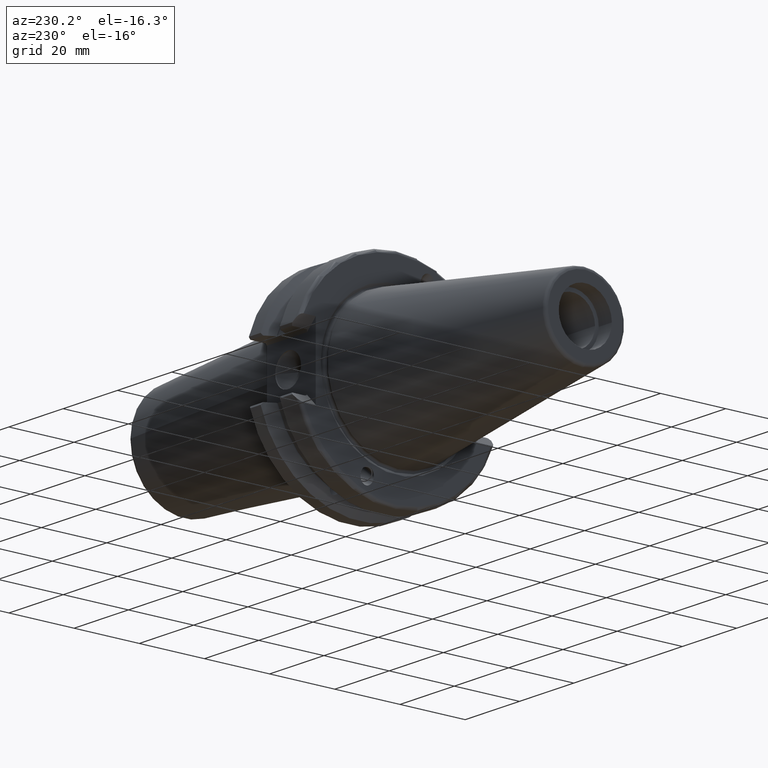
[diagram: clean part render]
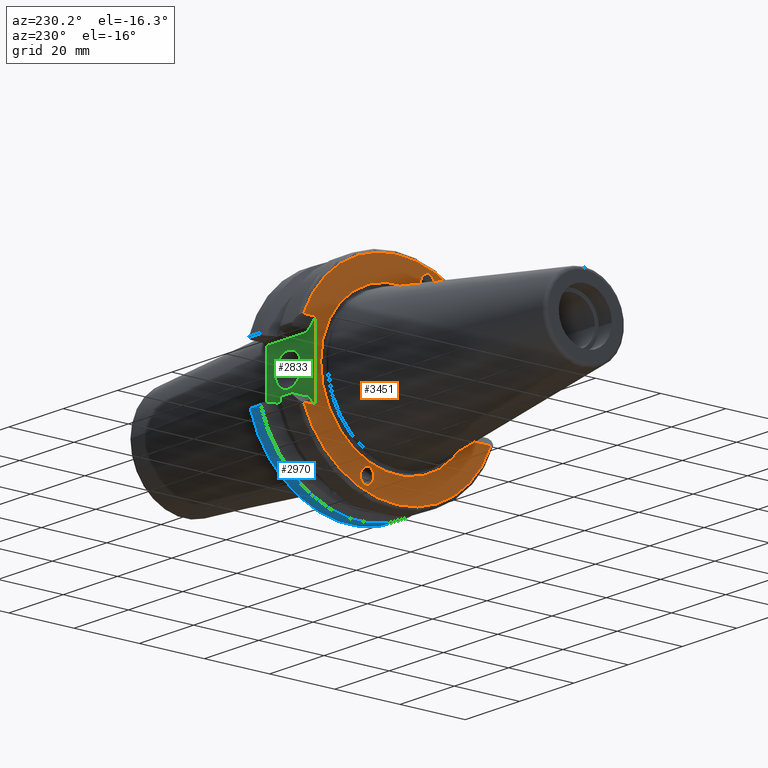
[diagram: same view with three faces highlighted in distinct colors, each labeled with its STEP entity id]
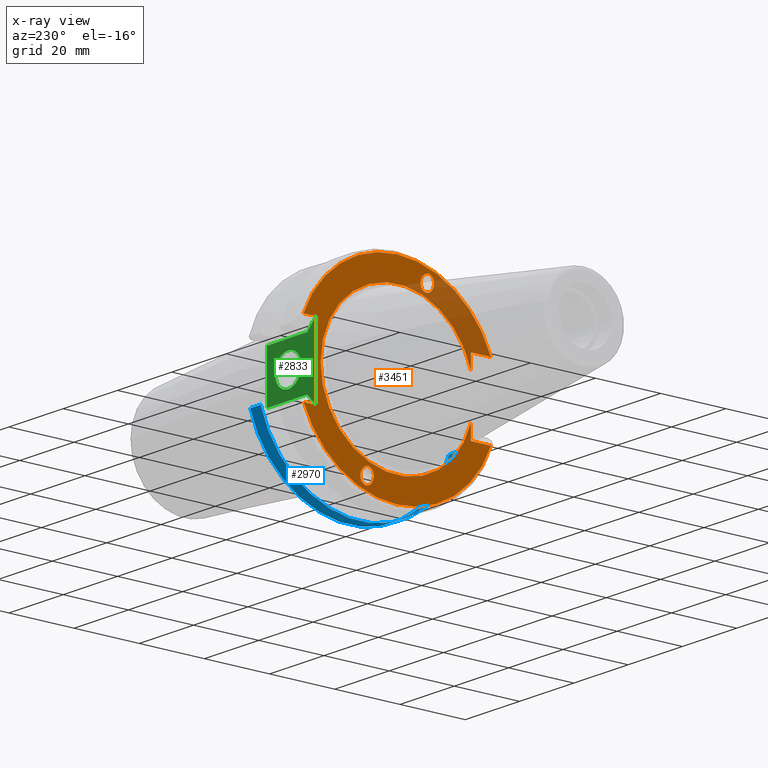
[diagram: x-ray of the same camera — body ghosted, the three highlighted faces saturated]
A machine part, auxiliary view with three faces highlighted in distinct colors.
The next image is the same camera in x-ray (body ghosted, the three faces saturated) — at least one of them is partly hidden behind the body in this view.
Their STEP definitions:

[orange] entity #3451 — the highlighted planar face has unit normal (1, 0, 0).
#514=DIRECTION('',(0.E0,0.E0,-1.E0));
#515=VECTOR('',#514,2.178E1);
#516=CARTESIAN_POINT('',(1.E0,2.5E1,1.089E1));
#517=LINE('',#516,#515);
#1136=DIRECTION('',(0.E0,1.E0,0.E0));
#1137=VECTOR('',#1136,3.757093038066E0);
#1138=CARTESIAN_POINT('',(1.E0,2.5E1,-1.089E1));
#1139=LINE('',#1138,#1137);
#1140=DIRECTION('',(0.E0,-1.E0,0.E0));
#1141=VECTOR('',#1140,3.757093038066E0);
#1142=CARTESIAN_POINT('',(1.E0,2.875709303807E1,1.089E1));
#1143=LINE('',#1142,#1141);
#1144=DIRECTION('',(0.E0,-1.E0,0.E0));
#1145=VECTOR('',#1144,6.157093038066E0);
#1146=CARTESIAN_POINT('',(1.E0,-2.26E1,1.089E1));
#1147=LINE('',#1146,#1145);
#1148=DIRECTION('',(0.E0,1.E0,0.E0));
#1149=VECTOR('',#1148,6.157093038066E0);
#1150=CARTESIAN_POINT('',(1.E0,-2.875709303807E1,-1.089E1));
#1151=LINE('',#1150,#1149);
#1152=CARTESIAN_POINT('',(1.E0,9.497817545982E0,-2.776580810367E1));
#1153=CARTESIAN_POINT('',(1.E0,9.738190502451E0,-2.776580810367E1));
#1154=CARTESIAN_POINT('',(1.E0,1.024617601114E1,-2.766308128203E1));
#1155=CARTESIAN_POINT('',(1.E0,1.091176099893E1,-2.711678591569E1));
#1156=CARTESIAN_POINT('',(1.E0,1.128444525524E1,-2.625731684292E1));
#1157=CARTESIAN_POINT('',(1.E0,1.131773586616E1,-2.537170076122E1));
#1158=CARTESIAN_POINT('',(1.E0,1.108966752127E1,-2.448608467952E1));
#1159=CARTESIAN_POINT('',(1.E0,1.052795616634E1,-2.362661560675E1));
#1160=CARTESIAN_POINT('',(1.E0,9.742221854564E0,-2.308032024041E1));
#1161=CARTESIAN_POINT('',(1.E0,9.211643150074E0,-2.297759341877E1));
#1162=CARTESIAN_POINT('',(1.E0,8.971270193604E0,-2.297759341877E1));
#1164=CARTESIAN_POINT('',(1.E0,8.971270193604E0,-2.297759341877E1));
#1165=CARTESIAN_POINT('',(1.E0,8.730897237135E0,-2.297759341877E1));
#1166=CARTESIAN_POINT('',(1.E0,8.222911728444E0,-2.308032024041E1));
#1167=CARTESIAN_POINT('',(1.E0,7.557326740655E0,-2.362661560675E1));
#1168=CARTESIAN_POINT('',(1.E0,7.184642484349E0,-2.448608467952E1));
#1169=CARTESIAN_POINT('',(1.E0,7.151351873422E0,-2.537170076122E1));
#1170=CARTESIAN_POINT('',(1.E0,7.379420218318E0,-2.625731684292E1));
#1171=CARTESIAN_POINT('',(1.E0,7.941131573241E0,-2.711678591569E1));
#1172=CARTESIAN_POINT('',(1.E0,8.726865885022E0,-2.766308128203E1));
#1173=CARTESIAN_POINT('',(1.E0,9.257444589512E0,-2.776580810367E1));
#1174=CARTESIAN_POINT('',(1.E0,9.497817545982E0,-2.776580810367E1));
#1176=CARTESIAN_POINT('',(1.E0,-8.971270193604E0,2.297759341877E1));
#1177=CARTESIAN_POINT('',(1.E0,-8.730897237135E0,2.297759341877E1));
#1178=CARTESIAN_POINT('',(1.E0,-8.222911728444E0,2.308032024041E1));
#1179=CARTESIAN_POINT('',(1.E0,-7.557326740655E0,2.362661560675E1));
#1180=CARTESIAN_POINT('',(1.E0,-7.184642484349E0,2.448608467952E1));
#1181=CARTESIAN_POINT('',(1.E0,-7.151351873422E0,2.537170076122E1));
#1182=CARTESIAN_POINT('',(1.E0,-7.379420218318E0,2.625731684292E1));
#1183=CARTESIAN_POINT('',(1.E0,-7.941131573241E0,2.711678591569E1));
#1184=CARTESIAN_POINT('',(1.E0,-8.726865885022E0,2.766308128203E1));
#1185=CARTESIAN_POINT('',(1.E0,-9.257444589512E0,2.776580810367E1));
#1186=CARTESIAN_POINT('',(1.E0,-9.497817545982E0,2.776580810367E1));
#1188=CARTESIAN_POINT('',(1.E0,-9.497817545982E0,2.776580810367E1));
#1189=CARTESIAN_POINT('',(1.E0,-9.738190502451E0,2.776580810367E1));
#1190=CARTESIAN_POINT('',(1.E0,-1.024617601114E1,2.766308128203E1));
#1191=CARTESIAN_POINT('',(1.E0,-1.091176099893E1,2.711678591569E1));
#1192=CARTESIAN_POINT('',(1.E0,-1.128444525524E1,2.625731684292E1));
#1193=CARTESIAN_POINT('',(1.E0,-1.131773586616E1,2.537170076122E1));
#1194=CARTESIAN_POINT('',(1.E0,-1.108966752127E1,2.448608467952E1));
#1195=CARTESIAN_POINT('',(1.E0,-1.052795616634E1,2.362661560675E1));
#1196=CARTESIAN_POINT('',(1.E0,-9.742221854564E0,2.308032024041E1));
#1197=CARTESIAN_POINT('',(1.E0,-9.211643150074E0,2.297759341877E1));
#1198=CARTESIAN_POINT('',(1.E0,-8.971270193604E0,2.297759341877E1));
#1205=CARTESIAN_POINT('',(1.E0,0.E0,0.E0));
#1206=DIRECTION('',(-1.E0,0.E0,0.E0));
#1207=DIRECTION('',(0.E0,9.351900174981E-1,-3.541463414634E-1));
#1208=AXIS2_PLACEMENT_3D('',#1205,#1206,#1207);
#1222=CARTESIAN_POINT('',(1.E0,2.875709303807E1,-1.089E1));
#1236=CARTESIAN_POINT('',(1.E0,-2.875709303807E1,-1.089E1));
#1263=DIRECTION('',(0.E0,0.E0,1.E0));
#1264=VECTOR('',#1263,4.448726833925E0);
#1265=CARTESIAN_POINT('',(1.E0,-2.26E1,-1.089E1));
#1266=LINE('',#1265,#1264);
#1267=DIRECTION('',(0.E0,0.E0,1.E0));
#1268=VECTOR('',#1267,4.448726833925E0);
#1269=CARTESIAN_POINT('',(1.E0,-2.26E1,6.441273166075E0));
#1270=LINE('',#1269,#1268);
#1297=CARTESIAN_POINT('',(1.E0,-2.875709303807E1,1.089E1));
#1324=CARTESIAN_POINT('',(1.E0,0.E0,0.E0));
#1325=DIRECTION('',(-1.E0,0.E0,0.E0));
#1326=DIRECTION('',(0.E0,-9.351900174981E-1,3.541463414634E-1));
#1327=AXIS2_PLACEMENT_3D('',#1324,#1325,#1326);
#1337=CARTESIAN_POINT('',(1.E0,2.875709303807E1,1.089E1));
#1357=CARTESIAN_POINT('',(1.E0,-2.26E1,-6.441273166075E0));
#1359=CARTESIAN_POINT('',(1.E0,0.E0,0.E0));
#1360=DIRECTION('',(1.E0,0.E0,0.E0));
#1361=DIRECTION('',(0.E0,-9.617021276596E-1,-2.740967304713E-1));
#1362=AXIS2_PLACEMENT_3D('',#1359,#1360,#1361);
#1364=CARTESIAN_POINT('',(1.E0,-2.26E1,6.441273166075E0));
#1807=VERTEX_POINT('',#1364);
#1808=VERTEX_POINT('',#1357);
#1863=CARTESIAN_POINT('',(1.E0,2.5E1,1.089E1));
#1864=CARTESIAN_POINT('',(1.E0,2.5E1,-1.089E1));
#1865=VERTEX_POINT('',#1863);
#1866=VERTEX_POINT('',#1864);
#1867=CARTESIAN_POINT('',(1.E0,-2.26E1,-1.089E1));
#1868=VERTEX_POINT('',#1867);
#1869=CARTESIAN_POINT('',(1.E0,-2.26E1,1.089E1));
#1870=VERTEX_POINT('',#1869);
#1872=VERTEX_POINT('',#1222);
#1873=VERTEX_POINT('',#1236);
#1876=VERTEX_POINT('',#1297);
#1877=VERTEX_POINT('',#1337);
#1963=VERTEX_POINT('',#1152);
#1964=VERTEX_POINT('',#1162);
#2003=CARTESIAN_POINT('',(1.E0,-8.971270193604E0,2.297759341877E1));
#2004=VERTEX_POINT('',#2003);
#2005=CARTESIAN_POINT('',(1.E0,-9.497817545982E0,2.776580810367E1));
#2006=VERTEX_POINT('',#2005);
#3415=CARTESIAN_POINT('',(1.E0,0.E0,0.E0));
#3416=DIRECTION('',(1.E0,0.E0,0.E0));
#3417=DIRECTION('',(0.E0,0.E0,1.E0));
#3418=AXIS2_PLACEMENT_3D('',#3415,#3416,#3417);
#3419=PLANE('',#3418);
#3421=ORIENTED_EDGE('',*,*,#3420,.F.);
#3423=ORIENTED_EDGE('',*,*,#3422,.F.);
#3424=ORIENTED_EDGE('',*,*,#2819,.F.);
#3426=ORIENTED_EDGE('',*,*,#3425,.F.);
#3428=ORIENTED_EDGE('',*,*,#3427,.F.);
#3430=ORIENTED_EDGE('',*,*,#3429,.F.);
#3432=ORIENTED_EDGE('',*,*,#3431,.F.);
#3434=ORIENTED_EDGE('',*,*,#3433,.F.);
#3436=ORIENTED_EDGE('',*,*,#3435,.F.);
#3438=ORIENTED_EDGE('',*,*,#3437,.F.);
#3439=EDGE_LOOP('',(#3421,#3423,#3424,#3426,#3428,#3430,#3432,#3434,#3436,
#3438));
#3440=FACE_OUTER_BOUND('',#3439,.F.);
#3442=ORIENTED_EDGE('',*,*,#3441,.F.);
#3444=ORIENTED_EDGE('',*,*,#3443,.F.);
#3445=EDGE_LOOP('',(#3442,#3444));
#3446=FACE_BOUND('',#3445,.F.);
#3447=ORIENTED_EDGE('',*,*,#3394,.F.);
#3448=ORIENTED_EDGE('',*,*,#3410,.F.);
#3449=EDGE_LOOP('',(#3447,#3448));
#3450=FACE_BOUND('',#3449,.F.);
#3451=ADVANCED_FACE('',(#3440,#3446,#3450),#3419,.F.);
#1163=B_SPLINE_CURVE_WITH_KNOTS('',3,(#1152,#1153,#1154,#1155,#1156,#1157,#1158,
#1159,#1160,#1161,#1162),.UNSPECIFIED.,.F.,.F.,(4,1,1,1,1,1,1,1,4),(0.E0,
1.25E-1,2.5E-1,3.75E-1,5.E-1,6.25E-1,7.5E-1,8.75E-1,1.E0),.UNSPECIFIED.);
#1175=B_SPLINE_CURVE_WITH_KNOTS('',3,(#1164,#1165,#1166,#1167,#1168,#1169,#1170,
#1171,#1172,#1173,#1174),.UNSPECIFIED.,.F.,.F.,(4,1,1,1,1,1,1,1,4),(0.E0,
1.25E-1,2.5E-1,3.75E-1,5.E-1,6.25E-1,7.5E-1,8.75E-1,1.E0),.UNSPECIFIED.);
#1187=B_SPLINE_CURVE_WITH_KNOTS('',3,(#1176,#1177,#1178,#1179,#1180,#1181,#1182,
#1183,#1184,#1185,#1186),.UNSPECIFIED.,.F.,.F.,(4,1,1,1,1,1,1,1,4),(0.E0,
1.25E-1,2.5E-1,3.75E-1,5.E-1,6.25E-1,7.5E-1,8.75E-1,1.E0),.UNSPECIFIED.);
#1199=B_SPLINE_CURVE_WITH_KNOTS('',3,(#1188,#1189,#1190,#1191,#1192,#1193,#1194,
#1195,#1196,#1197,#1198),.UNSPECIFIED.,.F.,.F.,(4,1,1,1,1,1,1,1,4),(0.E0,
1.25E-1,2.5E-1,3.75E-1,5.E-1,6.25E-1,7.5E-1,8.75E-1,1.E0),.UNSPECIFIED.);
#1209=CIRCLE('',#1208,3.075E1);
#1328=CIRCLE('',#1327,3.075E1);
#1363=CIRCLE('',#1362,2.35E1);
#2819=EDGE_CURVE('',#1865,#1866,#517,.T.);
#3394=EDGE_CURVE('',#2004,#2006,#1187,.T.);
#3410=EDGE_CURVE('',#2006,#2004,#1199,.T.);
#3420=EDGE_CURVE('',#1872,#1873,#1209,.T.);
#3422=EDGE_CURVE('',#1866,#1872,#1139,.T.);
#3425=EDGE_CURVE('',#1877,#1865,#1143,.T.);
#3427=EDGE_CURVE('',#1876,#1877,#1328,.T.);
#3429=EDGE_CURVE('',#1870,#1876,#1147,.T.);
#3431=EDGE_CURVE('',#1807,#1870,#1270,.T.);
#3433=EDGE_CURVE('',#1808,#1807,#1363,.T.);
#3435=EDGE_CURVE('',#1868,#1808,#1266,.T.);
#3437=EDGE_CURVE('',#1873,#1868,#1151,.T.);
#3441=EDGE_CURVE('',#1963,#1964,#1163,.T.);
#3443=EDGE_CURVE('',#1964,#1963,#1175,.T.);

[blue] entity #2970 — the highlighted cylindrical surface (partial cylindrical patch) has radius 31.75 mm, axis along (1, 0, 0).
#366=CARTESIAN_POINT('',(1.470216676908E1,-3.049771389266E1,-8.82904E0));
#372=CARTESIAN_POINT('',(1.470216676908E1,0.E0,0.E0));
#373=DIRECTION('',(1.E0,0.E0,0.E0));
#374=DIRECTION('',(0.E0,-9.605579178790E-1,-2.7808E-1));
#375=AXIS2_PLACEMENT_3D('',#372,#373,#374);
#381=CARTESIAN_POINT('',(1.470216676908E1,3.049771389266E1,-8.82904E0));
#590=DIRECTION('',(1.E0,0.E0,0.E0));
#591=VECTOR('',#590,3.847875959240E0);
#592=CARTESIAN_POINT('',(1.470216676908E1,3.049771389266E1,-8.82904E0));
#593=LINE('',#592,#591);
#594=DIRECTION('',(-1.E0,0.E0,0.E0));
#595=VECTOR('',#594,3.847722488224E0);
#596=CARTESIAN_POINT('',(1.854988925730E1,-3.049771389266E1,-8.82904E0));
#597=LINE('',#596,#595);
#1712=CARTESIAN_POINT('',(1.855004272832E1,3.049771389266E1,-8.82904E0));
#1718=CARTESIAN_POINT('',(1.854995949116E1,7.988673359682E-5,
1.318174727594E-5));
#1719=DIRECTION('',(-1.E0,0.E0,0.E0));
#1720=DIRECTION('',(0.E0,9.605576124124E-1,-2.780810551558E-1));
#1721=AXIS2_PLACEMENT_3D('',#1718,#1719,#1720);
#1727=CARTESIAN_POINT('',(1.854988925730E1,-3.049771389266E1,-8.82904E0));
#1885=VERTEX_POINT('',#1712);
#1891=VERTEX_POINT('',#381);
#1918=VERTEX_POINT('',#366);
#1923=VERTEX_POINT('',#1727);
#2957=CARTESIAN_POINT('',(9.75E-2,0.E0,0.E0));
#2958=DIRECTION('',(1.E0,0.E0,0.E0));
#2959=DIRECTION('',(0.E0,0.E0,1.E0));
#2960=AXIS2_PLACEMENT_3D('',#2957,#2958,#2959);
#2961=CYLINDRICAL_SURFACE('',#2960,3.175E1);
#2963=ORIENTED_EDGE('',*,*,#2962,.F.);
#2964=ORIENTED_EDGE('',*,*,#2656,.F.);
#2965=ORIENTED_EDGE('',*,*,#2640,.F.);
#2967=ORIENTED_EDGE('',*,*,#2966,.F.);
#2968=EDGE_LOOP('',(#2963,#2964,#2965,#2967));
#2969=FACE_OUTER_BOUND('',#2968,.F.);
#2970=ADVANCED_FACE('',(#2969),#2961,.T.);
#376=CIRCLE('',#375,3.175E1);
#1722=CIRCLE('',#1721,3.175001016727E1);
#2640=EDGE_CURVE('',#1923,#1918,#597,.T.);
#2656=EDGE_CURVE('',#1918,#1891,#376,.T.);
#2962=EDGE_CURVE('',#1891,#1885,#593,.T.);
#2966=EDGE_CURVE('',#1885,#1923,#1722,.T.);

[green] entity #2833 — the highlighted planar face has unit normal (0, 1, 0).
#278=DIRECTION('',(0.E0,0.E0,-1.E0));
#279=VECTOR('',#278,1.538E1);
#280=CARTESIAN_POINT('',(1.905E1,2.5E1,7.69E0));
#281=LINE('',#280,#279);
#500=CARTESIAN_POINT('',(1.1176E1,2.5E1,0.E0));
#501=DIRECTION('',(0.E0,1.E0,0.E0));
#502=DIRECTION('',(1.E0,0.E0,0.E0));
#503=AXIS2_PLACEMENT_3D('',#500,#501,#502);
#505=CARTESIAN_POINT('',(1.1176E1,2.5E1,0.E0));
#506=DIRECTION('',(0.E0,1.E0,0.E0));
#507=DIRECTION('',(-1.E0,0.E0,0.E0));
#508=AXIS2_PLACEMENT_3D('',#505,#506,#507);
#510=DIRECTION('',(-1.E0,0.E0,0.E0));
#511=VECTOR('',#510,1.485E1);
#512=CARTESIAN_POINT('',(1.905E1,2.5E1,7.69E0));
#513=LINE('',#512,#511);
#514=DIRECTION('',(0.E0,0.E0,-1.E0));
#515=VECTOR('',#514,2.178E1);
#516=CARTESIAN_POINT('',(1.E0,2.5E1,1.089E1));
#517=LINE('',#516,#515);
#518=DIRECTION('',(1.E0,0.E0,0.E0));
#519=VECTOR('',#518,1.485E1);
#520=CARTESIAN_POINT('',(4.2E0,2.5E1,-7.69E0));
#521=LINE('',#520,#519);
#1210=DIRECTION('',(-7.071067811865E-1,0.E0,-7.071067811865E-1));
#1211=VECTOR('',#1210,4.525483399594E0);
#1212=CARTESIAN_POINT('',(4.2E0,2.5E1,-7.69E0));
#1213=LINE('',#1212,#1211);
#1329=DIRECTION('',(7.071067811865E-1,0.E0,-7.071067811865E-1));
#1330=VECTOR('',#1329,4.525483399594E0);
#1331=CARTESIAN_POINT('',(1.E0,2.5E1,1.089E1));
#1332=LINE('',#1331,#1330);
#1831=CARTESIAN_POINT('',(1.59385E1,2.5E1,0.E0));
#1832=CARTESIAN_POINT('',(6.4135E0,2.5E1,0.E0));
#1833=VERTEX_POINT('',#1831);
#1834=VERTEX_POINT('',#1832);
#1863=CARTESIAN_POINT('',(1.E0,2.5E1,1.089E1));
#1864=CARTESIAN_POINT('',(1.E0,2.5E1,-1.089E1));
#1865=VERTEX_POINT('',#1863);
#1866=VERTEX_POINT('',#1864);
#1931=CARTESIAN_POINT('',(1.905E1,2.5E1,7.69E0));
#1932=CARTESIAN_POINT('',(4.2E0,2.5E1,7.69E0));
#1933=VERTEX_POINT('',#1931);
#1934=VERTEX_POINT('',#1932);
#1939=CARTESIAN_POINT('',(4.2E0,2.5E1,-7.69E0));
#1940=CARTESIAN_POINT('',(1.905E1,2.5E1,-7.69E0));
#1941=VERTEX_POINT('',#1939);
#1942=VERTEX_POINT('',#1940);
#2810=CARTESIAN_POINT('',(0.E0,2.5E1,0.E0));
#2811=DIRECTION('',(0.E0,1.E0,0.E0));
#2812=DIRECTION('',(1.E0,0.E0,0.E0));
#2813=AXIS2_PLACEMENT_3D('',#2810,#2811,#2812);
#2814=PLANE('',#2813);
#2816=ORIENTED_EDGE('',*,*,#2815,.T.);
#2818=ORIENTED_EDGE('',*,*,#2817,.F.);
#2820=ORIENTED_EDGE('',*,*,#2819,.T.);
#2822=ORIENTED_EDGE('',*,*,#2821,.F.);
#2823=ORIENTED_EDGE('',*,*,#2801,.T.);
#2824=ORIENTED_EDGE('',*,*,#2551,.F.);
#2825=EDGE_LOOP('',(#2816,#2818,#2820,#2822,#2823,#2824));
#2826=FACE_OUTER_BOUND('',#2825,.F.);
#2828=ORIENTED_EDGE('',*,*,#2827,.T.);
#2830=ORIENTED_EDGE('',*,*,#2829,.T.);
#2831=EDGE_LOOP('',(#2828,#2830));
#2832=FACE_BOUND('',#2831,.F.);
#2833=ADVANCED_FACE('',(#2826,#2832),#2814,.T.);
#504=CIRCLE('',#503,4.7625E0);
#509=CIRCLE('',#508,4.7625E0);
#2551=EDGE_CURVE('',#1933,#1942,#281,.T.);
#2801=EDGE_CURVE('',#1941,#1942,#521,.T.);
#2815=EDGE_CURVE('',#1933,#1934,#513,.T.);
#2817=EDGE_CURVE('',#1865,#1934,#1332,.T.);
#2819=EDGE_CURVE('',#1865,#1866,#517,.T.);
#2821=EDGE_CURVE('',#1941,#1866,#1213,.T.);
#2827=EDGE_CURVE('',#1833,#1834,#504,.T.);
#2829=EDGE_CURVE('',#1834,#1833,#509,.T.);